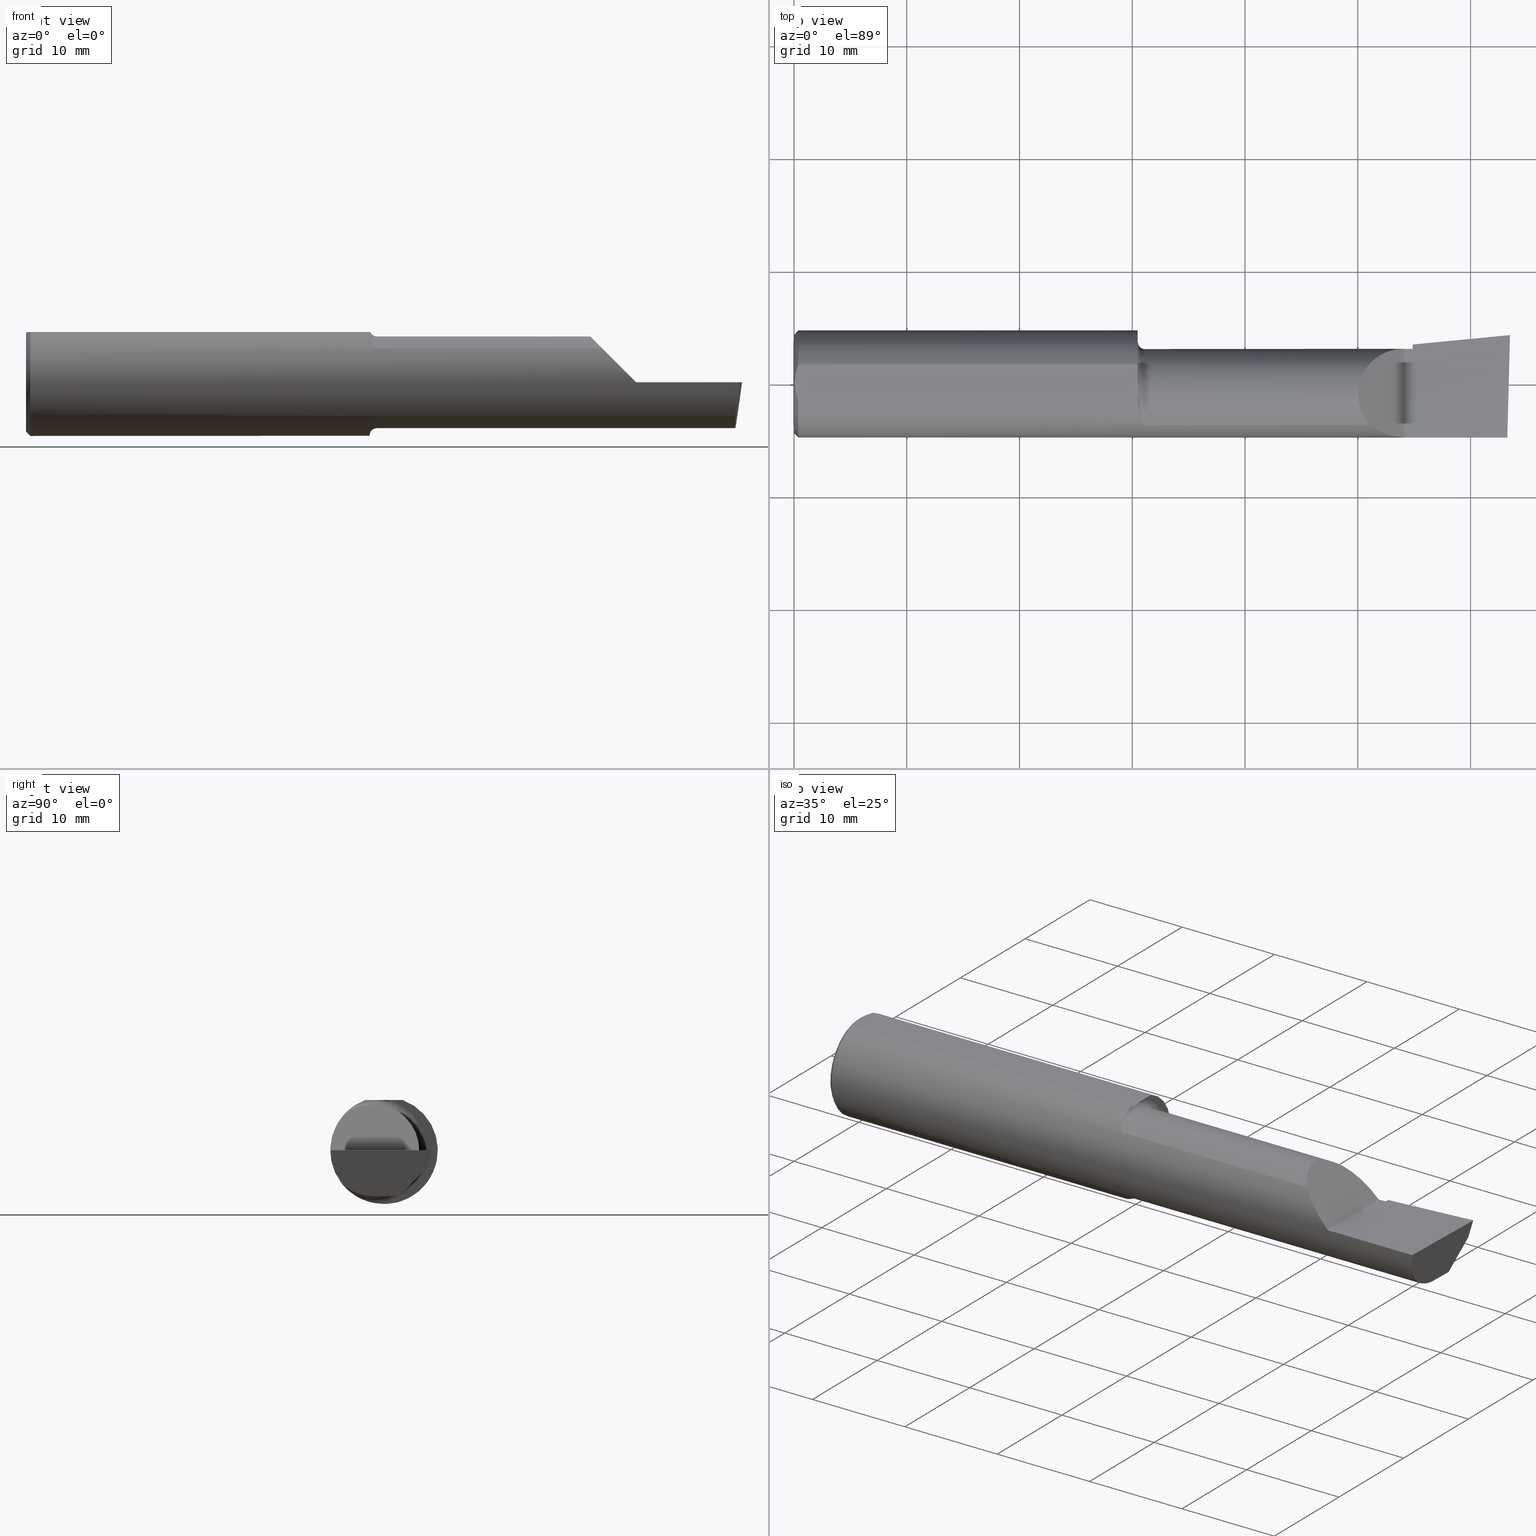
[diagram: canonical four-view strip — front | top / right | iso, engineering-drawing reading convention]
A machine part, canonical four-view strip (front | top / right | iso — engineering-drawing reading convention). The complete STEP part file that produces these views, byte-faithful:
ISO-10303-21;
HEADER;
FILE_DESCRIPTION (( 'STEP AP203' ),
    '1' );
FILE_NAME ('217525-B3601250.STEP',
    '2024-04-26T22:27:22',
    ( '' ),
    ( '' ),
    'SwSTEP 2.0',
    'SolidWorks 2022',
    '' );
FILE_SCHEMA (( 'CONFIG_CONTROL_DESIGN' ));
ENDSEC;

DATA;
#1 = ORIENTED_EDGE ( 'NONE', *, *, #60, .T. ) ;
#2 = CARTESIAN_POINT ( 'NONE',  ( 1.213610562096348877, -0.1338335382286872099, 0.1311728947444863180 ) ) ;
#3 = CARTESIAN_POINT ( 'NONE',  ( 1.217060058352116059, -0.1401415676386940368, -0.1243666343873851138 ) ) ;
#4 = CARTESIAN_POINT ( 'NONE',  ( 2.491169618080469217, 0.05430702260361125466, -0.1600499999999999701 ) ) ;
#5 = CIRCLE ( 'NONE', #86, 0.1873499999999999888 ) ;
#6 = EDGE_CURVE ( 'NONE', #57, #480, #492, .T. ) ;
#7 = CARTESIAN_POINT ( 'NONE',  ( 2.160000000000000142, -0.03740000000000000269, 0.000000000000000000 ) ) ;
#8 = CARTESIAN_POINT ( 'NONE',  ( 1.692500000000000115, -0.1454917112299468074, 0.1180346748349050540 ) ) ;
#9 = VERTEX_POINT ( 'NONE', #108 ) ;
#10 = APPROVAL_DATE_TIME ( #635, #366 ) ;
#11 = CARTESIAN_POINT ( 'NONE',  ( 1.203931069367344397, -0.09745462642916713492, 0.1609342754328615399 ) ) ;
#12 = VERTEX_POINT ( 'NONE', #396 ) ;
#13 = ADVANCED_FACE ( 'NONE', ( #55 ), #293, .F. ) ;
#14 = DIRECTION ( 'NONE',  ( -1.000000000000000000, 6.829619984160658046E-18, -0.000000000000000000 ) ) ;
#15 = FACE_OUTER_BOUND ( 'NONE', #619, .T. ) ;
#16 = CIRCLE ( 'NONE', #341, 0.1850499999999998535 ) ;
#17 = FACE_OUTER_BOUND ( 'NONE', #408, .T. ) ;
#18 = EDGE_CURVE ( 'NONE', #114, #513, #243, .T. ) ;
#19 = DIRECTION ( 'NONE',  ( -2.005228508682078977E-18, -0.2936076258024064023, -0.9559260233253795702 ) ) ;
#20 = CARTESIAN_POINT ( 'NONE',  ( 2.160000000000000142, 0.1379117236128366564, 0.000000000000000000 ) ) ;
#21 = DIRECTION ( 'NONE',  ( 0.000000000000000000, 0.000000000000000000, 1.000000000000000000 ) ) ;
#22 = ORIENTED_EDGE ( 'NONE', *, *, #129, .T. ) ;
#23 = CARTESIAN_POINT ( 'NONE',  ( 1.201790586316525022, -0.05136925160306193144, 0.1753499999999999781 ) ) ;
#24 = ADVANCED_FACE ( 'NONE', ( #454 ), #245, .F. ) ;
#25 = ORIENTED_EDGE ( 'NONE', *, *, #137, .F. ) ;
#26 = LOCAL_TIME ( 15, 27, 22.00000000000000000, #482 ) ;
#27 = ADVANCED_FACE ( 'NONE', ( #151 ), #59, .T. ) ;
#28 = CARTESIAN_POINT ( 'NONE',  ( 1.199999999999999956, 0.06597272163553663527, 0.1753499999999999781 ) ) ;
#29 = ORIENTED_EDGE ( 'NONE', *, *, #90, .F. ) ;
#30 = COORDINATED_UNIVERSAL_TIME_OFFSET ( 8, 0, .BEHIND. ) ;
#31 = CARTESIAN_POINT ( 'NONE',  ( 2.160000000000000142, 0.1010446066476776983, -0.07900565447499380278 ) ) ;
#32 = ORIENTED_EDGE ( 'NONE', *, *, #385, .F. ) ;
#33 = FACE_OUTER_BOUND ( 'NONE', #85, .T. ) ;
#34 = VERTEX_POINT ( 'NONE', #490 ) ;
#35 = AXIS2_PLACEMENT_3D ( 'NONE', #56, #592, #48 ) ;
#36 = AXIS2_PLACEMENT_3D ( 'NONE', #355, #407, #21 ) ;
#37 = APPROVAL_STATUS ( 'not_yet_approved' ) ;
#38 = CARTESIAN_POINT ( 'NONE',  ( 1.093080678464946361E-18, 0.1226499999999998841, 3.267291166268304703E-16 ) ) ;
#39 = ORIENTED_EDGE ( 'NONE', *, *, #190, .T. ) ;
#40 = B_SPLINE_CURVE_WITH_KNOTS ( 'NONE', 3,
 ( #117, #263, #171, #561, #111, #557, #369, #23, #311, #314 ),
 .UNSPECIFIED., .F., .F.,
 ( 4, 2, 2, 2, 4 ),
 ( 0.01227444304810798928, 0.01283060897602172207, 0.01338677490393545486, 0.01394294083184918764, 0.01449910675976292043 ),
 .UNSPECIFIED. ) ;
#41 = LENGTH_MEASURE_WITH_UNIT ( LENGTH_MEASURE( 0.02539999999999999897 ), #430 );
#42 = LINE ( 'NONE', #279, #113 ) ;
#43 = ORIENTED_EDGE ( 'NONE', *, *, #625, .T. ) ;
#44 = ORIENTED_EDGE ( 'NONE', *, *, #338, .T. ) ;
#45 = AXIS2_PLACEMENT_3D ( 'NONE', #252, #14, #554 ) ;
#46 = CARTESIAN_POINT ( 'NONE',  ( 2.500000000000000000, -0.2500000000000000555, 6.829619984160658046E-17 ) ) ;
#47 = ORIENTED_EDGE ( 'NONE', *, *, #546, .T. ) ;
#48 = DIRECTION ( 'NONE',  ( -0.7071067811865511255, 0.000000000000000000, 0.7071067811865437980 ) ) ;
#49 = CARTESIAN_POINT ( 'NONE',  ( 1.207485333659844118, -0.1155414972264653672, -0.1479248906558521259 ) ) ;
#50 = LINE ( 'NONE', #301, #104 ) ;
#51 = CARTESIAN_POINT ( 'NONE',  ( 2.160000000000000142, 0.1379117236128366564, 0.000000000000000000 ) ) ;
#52 = DIRECTION ( 'NONE',  ( -0.09165774897393340337, 0.9519021185660613282, -0.2923717047227306631 ) ) ;
#53 = CIRCLE ( 'NONE', #423, 0.1600499999999999701 ) ;
#54 = VECTOR ( 'NONE', #203, 39.37007874015748143 ) ;
#55 = FACE_OUTER_BOUND ( 'NONE', #290, .T. ) ;
#56 = CARTESIAN_POINT ( 'NONE',  ( 2.129999999999999893, -0.2500000000000000555, 1.065442715258197396E-16 ) ) ;
#57 = VERTEX_POINT ( 'NONE', #347 ) ;
#58 = CARTESIAN_POINT ( 'NONE',  ( 2.492483720199198949, 0.1538199878950242405, -0.05760614975163728946 ) ) ;
#59 = CYLINDRICAL_SURFACE ( 'NONE', #507, 0.1600499999999999146 ) ;
#60 = EDGE_CURVE ( 'NONE', #570, #328, #389, .T. ) ;
#61 = PLANE ( 'NONE',  #560 ) ;
#62 = LINE ( 'NONE', #172, #496 ) ;
#63 = VECTOR ( 'NONE', #346, 39.37007874015748854 ) ;
#64 = EDGE_LOOP ( 'NONE', ( #364, #259, #80, #388 ) ) ;
#65 = PLANE ( 'NONE',  #280 ) ;
#66 = CARTESIAN_POINT ( 'NONE',  ( 0.01499999999999997863, -0.06597272163553657975, 0.1753499999999999781 ) ) ;
#67 = B_SPLINE_CURVE_WITH_KNOTS ( 'NONE', 3,
 ( #260, #459, #211, #611, #164, #511 ),
 .UNSPECIFIED., .F., .F.,
 ( 4, 2, 4 ),
 ( 0.003480013901590607410, 0.004330767971208083697, 0.005181522040825559984 ),
 .UNSPECIFIED. ) ;
#68 = VERTEX_POINT ( 'NONE', #501 ) ;
#69 = ADVANCED_FACE ( 'NONE', ( #15 ), #206, .T. ) ;
#70 = CARTESIAN_POINT ( 'NONE',  ( 0.01499999999999999424, 0.000000000000000000, 0.000000000000000000 ) ) ;
#71 = LINE ( 'NONE', #418, #594 ) ;
#72 = EDGE_CURVE ( 'NONE', #287, #368, #333, .T. ) ;
#73 = ORIENTED_EDGE ( 'NONE', *, *, #118, .F. ) ;
#74 = CARTESIAN_POINT ( 'NONE',  ( 2.129999999999999893, 0.1226499999999998147, 1.065442715258197396E-16 ) ) ;
#75 = DIRECTION ( 'NONE',  ( 0.000000000000000000, 1.000000000000000000, 0.000000000000000000 ) ) ;
#76 = VERTEX_POINT ( 'NONE', #545 ) ;
#77 = TOROIDAL_SURFACE ( 'NONE', #45, 0.1850499999999998535, 0.02500000000000000486 ) ;
#78 = CARTESIAN_POINT ( 'NONE',  ( 0.000000000000000000, 0.000000000000000000, 0.000000000000000000 ) ) ;
#79 = FACE_OUTER_BOUND ( 'NONE', #487, .T. ) ;
#80 = ORIENTED_EDGE ( 'NONE', *, *, #6, .T. ) ;
#81 = EDGE_CURVE ( 'NONE', #337, #12, #102, .T. ) ;
#82 = PERSON_AND_ORGANIZATION ( #585, #149 ) ;
#83 = FACE_OUTER_BOUND ( 'NONE', #376, .T. ) ;
#84 = ORIENTED_EDGE ( 'NONE', *, *, #118, .T. ) ;
#85 = EDGE_LOOP ( 'NONE', ( #563, #39, #25 ) ) ;
#86 = AXIS2_PLACEMENT_3D ( 'NONE', #109, #357, #306 ) ;
#87 = COORDINATED_UNIVERSAL_TIME_OFFSET ( 8, 0, .BEHIND. ) ;
#88 = ORIENTED_EDGE ( 'NONE', *, *, #254, .T. ) ;
#89 = APPROVAL_STATUS ( 'not_yet_approved' ) ;
#90 = EDGE_CURVE ( 'NONE', #335, #584, #71, .T. ) ;
#91 = CARTESIAN_POINT ( 'NONE',  ( 2.086590019116435268, -0.1873500000000000165, 0.04340998088356443074 ) ) ;
#92 = ORIENTED_EDGE ( 'NONE', *, *, #123, .T. ) ;
#93 = EDGE_CURVE ( 'NONE', #9, #57, #370, .T. ) ;
#94 = VERTEX_POINT ( 'NONE', #261 ) ;
#95 = APPROVAL_PERSON_ORGANIZATION ( #532, #617, #436 ) ;
#96 = FACE_OUTER_BOUND ( 'NONE', #121, .T. ) ;
#97 = ORIENTED_EDGE ( 'NONE', *, *, #326, .T. ) ;
#98 = EDGE_CURVE ( 'NONE', #76, #68, #138, .T. ) ;
#99 = DIRECTION ( 'NONE',  ( 0.7071067811865390240, 8.659560562355036396E-17, 0.7071067811865560104 ) ) ;
#100 = CARTESIAN_POINT ( 'NONE',  ( 1.222144995725004124, -0.1448851833857938698, -0.1187833539262090621 ) ) ;
#101 = DIRECTION ( 'NONE',  ( 0.000000000000000000, -1.000000000000000000, 0.000000000000000000 ) ) ;
#102 = LINE ( 'NONE', #298, #530 ) ;
#103 = CARTESIAN_POINT ( 'NONE',  ( 1.201116380138691264, -0.06597272163553657975, 0.1753499999999999781 ) ) ;
#104 = VECTOR ( 'NONE', #244, 39.37007874015748143 ) ;
#105 = VECTOR ( 'NONE', #612, 39.37007874015748143 ) ;
#106 = CARTESIAN_POINT ( 'NONE',  ( 1.212916881138097258, -0.1325294370633285645, -0.1325423110575142671 ) ) ;
#107 = CARTESIAN_POINT ( 'NONE',  ( 1.225000000000000089, -0.1454917112299475568, 0.1180346748349042352 ) ) ;
#108 = CARTESIAN_POINT ( 'NONE',  ( 2.477259974483429161, 0.05296767626088545039, -0.1600499999999999701 ) ) ;
#109 = CARTESIAN_POINT ( 'NONE',  ( 0.01499999999999999424, 0.000000000000000000, 0.000000000000000000 ) ) ;
#110 = DIRECTION ( 'NONE',  ( 0.1240019227989976880, 0.3022330132596679486, 0.9451342385281217284 ) ) ;
#111 = CARTESIAN_POINT ( 'NONE',  ( 1.201446793517543243, -0.01487494471388409178, 0.1753500000000000059 ) ) ;
#112 = CARTESIAN_POINT ( 'NONE',  ( 2.160000000000000142, 0.02241901528670510110, -0.1600499999999999701 ) ) ;
#113 = VECTOR ( 'NONE', #330, 39.37007874015748143 ) ;
#114 = VERTEX_POINT ( 'NONE', #607 ) ;
#115 = APPLICATION_CONTEXT ( 'configuration controlled 3d designs of mechanical parts and assemblies' ) ;
#116 = EDGE_CURVE ( 'NONE', #319, #34, #181, .T. ) ;
#117 = CARTESIAN_POINT ( 'NONE',  ( 1.199999999999999956, 0.02172596722253220328, 0.1753499999999999781 ) ) ;
#118 = EDGE_CURVE ( 'NONE', #337, #179, #62, .T. ) ;
#119 = CARTESIAN_POINT ( 'NONE',  ( 2.474646882977779683, -0.1156304438478839708, -0.1453804992321580114 ) ) ;
#120 = LINE ( 'NONE', #509, #105 ) ;
#121 = EDGE_LOOP ( 'NONE', ( #135, #383, #73, #325 ) ) ;
#122 = CARTESIAN_POINT ( 'NONE',  ( 2.160000000000000142, 0.1010446066476776983, -0.07900565447499380278 ) ) ;
#123 = EDGE_CURVE ( 'NONE', #227, #186, #207, .T. ) ;
#124 = CARTESIAN_POINT ( 'NONE',  ( 2.477223734188807924, -0.1454917112299468074, -0.1180346748349050540 ) ) ;
#125 = ORIENTED_EDGE ( 'NONE', *, *, #356, .F. ) ;
#126 = CC_DESIGN_APPROVAL ( #617, ( #297 ) ) ;
#127 = CARTESIAN_POINT ( 'NONE',  ( 0.01499999999999997863, -0.06597272163553657975, 0.1753499999999999781 ) ) ;
#128 = ORIENTED_EDGE ( 'NONE', *, *, #162, .T. ) ;
#129 = EDGE_CURVE ( 'NONE', #328, #584, #217, .T. ) ;
#130 = PERSON_AND_ORGANIZATION_ROLE ( 'design_supplier' ) ;
#131 = CARTESIAN_POINT ( 'NONE',  ( 0.000000000000000000, 0.000000000000000000, 0.000000000000000000 ) ) ;
#132 = ORIENTED_EDGE ( 'NONE', *, *, #93, .F. ) ;
#133 = CALENDAR_DATE ( 2024, 26, 4 ) ;
#134 = DIRECTION ( 'NONE',  ( 0.000000000000000000, 0.000000000000000000, -1.000000000000000000 ) ) ;
#135 = ORIENTED_EDGE ( 'NONE', *, *, #183, .F. ) ;
#136 = VECTOR ( 'NONE', #242, 39.37007874015748854 ) ;
#137 = EDGE_CURVE ( 'NONE', #480, #176, #120, .T. ) ;
#138 = CIRCLE ( 'NONE', #36, 0.1723499999999996424 ) ;
#139 = PERSON_AND_ORGANIZATION_ROLE ( 'creator' ) ;
#140 = B_SPLINE_CURVE_WITH_KNOTS ( 'NONE', 3,
 ( #103, #552, #11, #156, #395, #2, #497, #596, #352, #202, #400, #602, #152, #107 ),
 .UNSPECIFIED., .F., .F.,
 ( 4, 2, 2, 2, 2, 2, 4 ),
 ( 5.633523616107936189E-07, 0.001319819381107009085, 0.001979447395479707206, 0.002309261402666058002, 0.002474168406259232532, 0.002556621908055823483, 0.002639075409852414001 ),
 .UNSPECIFIED. ) ;
#141 = EDGE_CURVE ( 'NONE', #227, #57, #299, .T. ) ;
#142 = ORIENTED_EDGE ( 'NONE', *, *, #98, .T. ) ;
#143 = CARTESIAN_POINT ( 'NONE',  ( 2.160000000000000142, 0.04400172171466215643, -0.1378033461200730836 ) ) ;
#144 = ORIENTED_EDGE ( 'NONE', *, *, #345, .T. ) ;
#145 = CARTESIAN_POINT ( 'NONE',  ( 1.225000000000000089, -0.03739999999999999575, 0.000000000000000000 ) ) ;
#146 = EDGE_CURVE ( 'NONE', #416, #513, #434, .T. ) ;
#147 = ORIENTED_EDGE ( 'NONE', *, *, #141, .F. ) ;
#148 = AXIS2_PLACEMENT_3D ( 'NONE', #234, #428, #628 ) ;
#149 = ORGANIZATION ( 'UNSPECIFIED', 'UNSPECIFIED', '' ) ;
#150 = LINE ( 'NONE', #8, #157 ) ;
#151 = FACE_OUTER_BOUND ( 'NONE', #429, .T. ) ;
#152 = CARTESIAN_POINT ( 'NONE',  ( 1.223888626799697121, -0.1454917112299470849, 0.1180346748349045544 ) ) ;
#153 = DIRECTION ( 'NONE',  ( 0.000000000000000000, -1.000000000000000000, 0.000000000000000000 ) ) ;
#154 = FACE_OUTER_BOUND ( 'NONE', #359, .T. ) ;
#155 = DIRECTION ( 'NONE',  ( -6.829619984160658046E-18, -1.000000000000000000, 0.000000000000000000 ) ) ;
#156 = CARTESIAN_POINT ( 'NONE',  ( 1.208327409769773597, -0.1182546610979338386, 0.1455684145307627186 ) ) ;
#157 = VECTOR ( 'NONE', #542, 39.37007874015748143 ) ;
#158 = CARTESIAN_POINT ( 'NONE',  ( 1.223475335450381341, -0.1454917112299472792, -0.1180346748349044850 ) ) ;
#159 = CARTESIAN_POINT ( 'NONE',  ( 2.500000000000000000, -0.03739999999999999575, -0.1600499999999999701 ) ) ;
#160 = CARTESIAN_POINT ( 'NONE',  ( 1.199999999999999956, 0.1476499999999998647, 0.000000000000000000 ) ) ;
#161 = CARTESIAN_POINT ( 'NONE',  ( 2.129999999999999893, 0.1226499999999998147, 1.065442715258197396E-16 ) ) ;
#162 = EDGE_CURVE ( 'NONE', #186, #114, #358, .T. ) ;
#163 = ORIENTED_EDGE ( 'NONE', *, *, #441, .T. ) ;
#164 = CARTESIAN_POINT ( 'NONE',  ( 0.01125230581755086272, 0.05532998191409922023, 0.1753500000000000059 ) ) ;
#165 = DIRECTION ( 'NONE',  ( 1.000000000000000000, 0.000000000000000000, 0.000000000000000000 ) ) ;
#166 = CIRCLE ( 'NONE', #528, 0.1600499999999999701 ) ;
#167 = AXIS2_PLACEMENT_3D ( 'NONE', #367, #519, #75 ) ;
#168 = FACE_OUTER_BOUND ( 'NONE', #380, .T. ) ;
#169 = LINE ( 'NONE', #565, #283 ) ;
#170 = ORIENTED_EDGE ( 'NONE', *, *, #248, .T. ) ;
#171 = CARTESIAN_POINT ( 'NONE',  ( 1.200322286002908134, 0.007053356780979112318, 0.1753499999999999781 ) ) ;
#172 = CARTESIAN_POINT ( 'NONE',  ( 2.160000000000000142, 0.1346188438362106166, -0.01072093908174519966 ) ) ;
#173 = EDGE_LOOP ( 'NONE', ( #386, #84, #163, #281 ) ) ;
#174 = CALENDAR_DATE ( 2024, 26, 4 ) ;
#175 = DIRECTION ( 'NONE',  ( 1.000000000000000000, -6.829619984160658046E-18, 0.000000000000000000 ) ) ;
#176 = VERTEX_POINT ( 'NONE', #112 ) ;
#177 = AXIS2_PLACEMENT_3D ( 'NONE', #296, #52, #247 ) ;
#178 = APPROVAL_ROLE ( '' ) ;
#179 = VERTEX_POINT ( 'NONE', #469 ) ;
#180 = DATE_AND_TIME ( #133, #517 ) ;
#181 = B_SPLINE_CURVE_WITH_KNOTS ( 'NONE', 3,
 ( #66, #457, #257, #609, #212, #618 ),
 .UNSPECIFIED., .F., .F.,
 ( 4, 2, 4 ),
 ( 0.001779942938356815062, 0.002629978419973711019, 0.003480013901590607410 ),
 .UNSPECIFIED. ) ;
#182 = ORIENTED_EDGE ( 'NONE', *, *, #577, .F. ) ;
#183 = EDGE_CURVE ( 'NONE', #378, #12, #215, .T. ) ;
#184 = CC_DESIGN_PERSON_AND_ORGANIZATION_ASSIGNMENT ( #580, #139, ( #297 ) ) ;
#185 = LINE ( 'NONE', #191, #505 ) ;
#186 = VERTEX_POINT ( 'NONE', #321 ) ;
#187 = VECTOR ( 'NONE', #175, 39.37007874015748143 ) ;
#188 = DIRECTION ( 'NONE',  ( 1.000000000000000000, 0.000000000000000000, 0.000000000000000000 ) ) ;
#189 = ORIENTED_EDGE ( 'NONE', *, *, #98, .F. ) ;
#190 = EDGE_CURVE ( 'NONE', #287, #176, #614, .T. ) ;
#191 = CARTESIAN_POINT ( 'NONE',  ( 0.01499999999999999424, 2.294375778202566330E-17, 0.1873499999999999888 ) ) ;
#192 = ORIENTED_EDGE ( 'NONE', *, *, #208, .F. ) ;
#193 = LINE ( 'NONE', #589, #63 ) ;
#194 = CARTESIAN_POINT ( 'NONE',  ( 1.215943198097122258, -0.1383011673991934587, -0.1264147259943146917 ) ) ;
#195 = VECTOR ( 'NONE', #196, 39.37007874015748854 ) ;
#196 = DIRECTION ( 'NONE',  ( -0.9953961983671800740, -0.09584575252021031166, 0.000000000000000000 ) ) ;
#197 = DIRECTION ( 'NONE',  ( 1.000000000000000000, -6.829619984160658046E-18, 0.000000000000000000 ) ) ;
#198 = DIRECTION ( 'NONE',  ( 0.000000000000000000, 0.000000000000000000, 1.000000000000000000 ) ) ;
#199 = DIRECTION ( 'NONE',  ( -1.000000000000000000, 5.691349986800549142E-18, -0.000000000000000000 ) ) ;
#200 = ADVANCED_FACE ( 'NONE', ( #79 ), #447, .T. ) ;
#201 = EDGE_CURVE ( 'NONE', #227, #570, #169, .T. ) ;
#202 = CARTESIAN_POINT ( 'NONE',  ( 1.220462485058698476, -0.1437494271365429566, 0.1201537477313801699 ) ) ;
#203 = DIRECTION ( 'NONE',  ( -0.000000000000000000, 1.000000000000000000, -0.000000000000000000 ) ) ;
#204 = LINE ( 'NONE', #58, #446 ) ;
#205 = CC_DESIGN_APPROVAL ( #366, ( #437 ) ) ;
#206 = CYLINDRICAL_SURFACE ( 'NONE', #246, 0.1873499999999999888 ) ;
#207 =( BOUNDED_CURVE ( )  B_SPLINE_CURVE ( 3, ( #363, #558, #318, #315 ),
 .UNSPECIFIED., .F., .T. ) 
 B_SPLINE_CURVE_WITH_KNOTS ( ( 4, 4 ),
 ( 0.6791649766273006872, 1.360746882514497491 ),
 .UNSPECIFIED. ) 
 CURVE ( )  GEOMETRIC_REPRESENTATION_ITEM ( )  RATIONAL_B_SPLINE_CURVE ( ( 1.000000000000000000, 0.9616603987079550553, 0.9616603987079550553, 1.000000000000000000 ) ) 
 REPRESENTATION_ITEM ( '' )  );
#208 = EDGE_CURVE ( 'NONE', #68, #76, #412, .T. ) ;
#209 = DIRECTION ( 'NONE',  ( -4.755568962650852027E-18, -0.6963153109074922131, -0.7177360153954949196 ) ) ;
#210 = CARTESIAN_POINT ( 'NONE',  ( 1.902393788885675230, -0.02584108761840225171, 0.2276062111143221378 ) ) ;
#211 = CARTESIAN_POINT ( 'NONE',  ( 0.004115035183746292881, 0.02255629470626744487, 0.1753499999999999781 ) ) ;
#212 = CARTESIAN_POINT ( 'NONE',  ( 0.003000000000000172667, -0.01126410975715121283, 0.1753500000000000059 ) ) ;
#213 = ORIENTED_EDGE ( 'NONE', *, *, #452, .T. ) ;
#214 = CARTESIAN_POINT ( 'NONE',  ( 2.160000000000000142, -0.03740000000000000269, 0.000000000000000000 ) ) ;
#215 = LINE ( 'NONE', #415, #476 ) ;
#216 =( GEOMETRIC_REPRESENTATION_CONTEXT ( 3 ) GLOBAL_UNCERTAINTY_ASSIGNED_CONTEXT ( ( #484 ) ) GLOBAL_UNIT_ASSIGNED_CONTEXT ( ( #518, #275, #478 ) ) REPRESENTATION_CONTEXT ( 'NONE', 'WORKASPACE' ) );
#217 = CIRCLE ( 'NONE', #167, 0.1873499999999999888 ) ;
#218 = DIRECTION ( 'NONE',  ( 1.000000000000000000, 0.000000000000000000, 0.000000000000000000 ) ) ;
#219 = DIRECTION ( 'NONE',  ( 0.000000000000000000, 0.000000000000000000, -1.000000000000000000 ) ) ;
#220 = EDGE_LOOP ( 'NONE', ( #308, #241, #566 ) ) ;
#221 = DIRECTION ( 'NONE',  ( 1.000000000000000000, 0.000000000000000000, 0.000000000000000000 ) ) ;
#222 = CC_DESIGN_DATE_AND_TIME_ASSIGNMENT ( #233, #372, ( #297 ) ) ;
#223 = DIRECTION ( 'NONE',  ( 0.000000000000000000, 1.000000000000000000, -1.438723400918613551E-16 ) ) ;
#224 = ORIENTED_EDGE ( 'NONE', *, *, #391, .F. ) ;
#225 = PERSON_AND_ORGANIZATION ( #585, #149 ) ;
#226 = LINE ( 'NONE', #38, #187 ) ;
#227 = VERTEX_POINT ( 'NONE', #236 ) ;
#228 = CALENDAR_DATE ( 2024, 26, 4 ) ;
#229 = ADVANCED_FACE ( 'NONE', ( #289 ), #334, .F. ) ;
#230 = LINE ( 'NONE', #374, #424 ) ;
#231 = ORIENTED_EDGE ( 'NONE', *, *, #309, .F. ) ;
#232 = EDGE_CURVE ( 'NONE', #534, #328, #16, .T. ) ;
#233 = DATE_AND_TIME ( #174, #26 ) ;
#234 = CARTESIAN_POINT ( 'NONE',  ( 2.160000000000000142, 0.1379117236128366564, 0.000000000000000000 ) ) ;
#235 = ORIENTED_EDGE ( 'NONE', *, *, #433, .T. ) ;
#236 = CARTESIAN_POINT ( 'NONE',  ( 2.477223734188807924, -0.1454917112299468074, -0.1180346748349050540 ) ) ;
#237 = ORIENTED_EDGE ( 'NONE', *, *, #598, .F. ) ;
#238 = APPROVAL_PERSON_ORGANIZATION ( #578, #366, #527 ) ;
#239 = DESIGN_CONTEXT ( 'detailed design', #258, 'design' ) ;
#240 = FACE_OUTER_BOUND ( 'NONE', #220, .T. ) ;
#241 = ORIENTED_EDGE ( 'NONE', *, *, #248, .F. ) ;
#242 = DIRECTION ( 'NONE',  ( 0.02617694830791474428, 0.9996573249755561497, -2.665804247648019634E-18 ) ) ;
#243 = LINE ( 'NONE', #543, #54 ) ;
#244 = DIRECTION ( 'NONE',  ( 6.829619984160658816E-18, 1.000000000000000000, -7.059994452165177242E-34 ) ) ;
#245 = PLANE ( 'NONE',  #351 ) ;
#246 = AXIS2_PLACEMENT_3D ( 'NONE', #590, #595, #295 ) ;
#247 = DIRECTION ( 'NONE',  ( 0.000000000000000000, 0.2936076258024064023, 0.9559260233253795702 ) ) ;
#248 = EDGE_CURVE ( 'NONE', #114, #416, #276, .T. ) ;
#249 = CARTESIAN_POINT ( 'NONE',  ( 2.472657716785286119, -0.1026153499216721221, -0.1643501480114536173 ) ) ;
#250 = DIRECTION ( 'NONE',  ( -0.06894566448119622548, 0.7160281025913036723, -0.6946583704589932573 ) ) ;
#251 = DIRECTION ( 'NONE',  ( -1.000000000000000000, 6.829619984160658046E-18, -0.000000000000000000 ) ) ;
#252 = CARTESIAN_POINT ( 'NONE',  ( 1.225000000000000089, -0.03739999999999997493, 0.000000000000000000 ) ) ;
#253 = CARTESIAN_POINT ( 'NONE',  ( 1.200336700870086037, -0.05340758954924543223, -0.1799583179751510220 ) ) ;
#254 = EDGE_CURVE ( 'NONE', #68, #574, #42, .T. ) ;
#255 = CARTESIAN_POINT ( 'NONE',  ( 2.160000000000000142, 0.1226499999999999674, 3.267291166268307168E-16 ) ) ;
#256 = CC_DESIGN_SECURITY_CLASSIFICATION ( #437, ( #623 ) ) ;
#257 = CARTESIAN_POINT ( 'NONE',  ( 0.008227791779583789808, -0.04447712204611815878, 0.1753499999999999781 ) ) ;
#258 = APPLICATION_CONTEXT ( 'configuration controlled 3d designs of mechanical parts and assemblies' ) ;
#259 = ORIENTED_EDGE ( 'NONE', *, *, #93, .T. ) ;
#260 = CARTESIAN_POINT ( 'NONE',  ( 0.003000000000000218638, 2.334609556160449697E-17, 0.1753499999999999781 ) ) ;
#261 = CARTESIAN_POINT ( 'NONE',  ( 1.225000000000000089, -0.1454917112299475568, 0.1180346748349042352 ) ) ;
#262 = ORIENTED_EDGE ( 'NONE', *, *, #556, .T. ) ;
#263 = CARTESIAN_POINT ( 'NONE',  ( 1.199999999999999734, 0.01439074984011793311, 0.1753499999999999781 ) ) ;
#264 = CARTESIAN_POINT ( 'NONE',  ( 2.011965325165093077, -0.1454917112299461968, 0.1180346748349056646 ) ) ;
#265 = ORIENTED_EDGE ( 'NONE', *, *, #546, .F. ) ;
#266 = DIRECTION ( 'NONE',  ( 1.000000000000000000, 0.000000000000000000, 0.000000000000000000 ) ) ;
#267 = DIRECTION ( 'NONE',  ( -1.000000000000000000, -0.000000000000000000, -0.000000000000000000 ) ) ;
#268 = CIRCLE ( 'NONE', #495, 0.1600499999999998313 ) ;
#269 = VECTOR ( 'NONE', #199, 39.37007874015748143 ) ;
#270 = ORIENTED_EDGE ( 'NONE', *, *, #162, .F. ) ;
#271 = DIRECTION ( 'NONE',  ( 0.000000000000000000, 0.000000000000000000, 1.000000000000000000 ) ) ;
#272 = CARTESIAN_POINT ( 'NONE',  ( 2.474910817315467693, -0.03674301662998678830, -0.1600499999999999701 ) ) ;
#273 = DIMENSIONAL_EXPONENTS ( 1.000000000000000000, 0.000000000000000000, 0.000000000000000000, 0.000000000000000000, 0.000000000000000000, 0.000000000000000000, 0.000000000000000000 ) ;
#274 = ORIENTED_EDGE ( 'NONE', *, *, #577, .T. ) ;
#275 =( NAMED_UNIT ( * ) PLANE_ANGLE_UNIT ( ) SI_UNIT ( $, .RADIAN. ) );
#276 =( BOUNDED_CURVE ( )  B_SPLINE_CURVE ( 3, ( #336, #91, #533, #277 ),
 .UNSPECIFIED., .F., .F. ) 
 B_SPLINE_CURVE_WITH_KNOTS ( ( 4, 4 ),
 ( 4.712388980384689674, 5.393970886271890031 ),
 .UNSPECIFIED. ) 
 CURVE ( )  GEOMETRIC_REPRESENTATION_ITEM ( )  RATIONAL_B_SPLINE_CURVE ( ( 1.000000000000000000, 0.9616603987079546112, 0.9616603987079546112, 1.000000000000000000 ) ) 
 REPRESENTATION_ITEM ( '' )  );
#277 = CARTESIAN_POINT ( 'NONE',  ( 2.011965325165093077, -0.1454917112299461968, 0.1180346748349056646 ) ) ;
#278 = ORIENTED_EDGE ( 'NONE', *, *, #232, .F. ) ;
#279 = CARTESIAN_POINT ( 'NONE',  ( 0.01499999999999999424, 0.000000000000000000, -0.1873499999999999888 ) ) ;
#280 = AXIS2_PLACEMENT_3D ( 'NONE', #20, #456, #564 ) ;
#281 = ORIENTED_EDGE ( 'NONE', *, *, #326, .F. ) ;
#282 = PRODUCT ( '217525-B3601250', '217525-B3601250', '', ( #468 ) ) ;
#283 = VECTOR ( 'NONE', #307, 39.37007874015748143 ) ;
#284 = ORIENTED_EDGE ( 'NONE', *, *, #425, .T. ) ;
#285 = CALENDAR_DATE ( 2024, 26, 4 ) ;
#286 = DIRECTION ( 'NONE',  ( -1.000000000000000000, 6.829619984160658046E-18, -0.000000000000000000 ) ) ;
#287 = VERTEX_POINT ( 'NONE', #143 ) ;
#288 = CALENDAR_DATE ( 2024, 26, 4 ) ;
#289 = FACE_OUTER_BOUND ( 'NONE', #510, .T. ) ;
#290 = EDGE_LOOP ( 'NONE', ( #610, #47 ) ) ;
#291 = ADVANCED_FACE ( 'NONE', ( #83 ), #621, .F. ) ;
#292 = PLANE ( 'NONE',  #177 ) ;
#293 = PLANE ( 'NONE',  #583 ) ;
#294 = CARTESIAN_POINT ( 'NONE',  ( 2.511712141217646632, 0.1533490680423130470, -0.05999999999999999084 ) ) ;
#295 = DIRECTION ( 'NONE',  ( 0.000000000000000000, 0.000000000000000000, 1.000000000000000000 ) ) ;
#296 = CARTESIAN_POINT ( 'NONE',  ( 2.509953961983671267, 0.1716084575252020683, -6.829619984160658046E-17 ) ) ;
#297 = PRODUCT_DEFINITION ( 'UNKNOWN', '', #623, #239 ) ;
#298 = CARTESIAN_POINT ( 'NONE',  ( 0.3393181374772696324, -0.03739999999999998881, 2.916527262322783071E-16 ) ) ;
#299 =( BOUNDED_CURVE ( )  B_SPLINE_CURVE ( 3, ( #124, #119, #568, #562 ),
 .UNSPECIFIED., .F., .T. ) 
 B_SPLINE_CURVE_WITH_KNOTS ( ( 4, 4 ),
 ( 5.751779107031783411, 6.493234751459985965 ),
 .UNSPECIFIED. ) 
 CURVE ( )  GEOMETRIC_REPRESENTATION_ITEM ( )  RATIONAL_B_SPLINE_CURVE ( ( 1.000000000000000000, 0.9547092712975350226, 0.9547092712975350226, 1.000000000000000000 ) ) 
 REPRESENTATION_ITEM ( '' )  );
#300 = CONICAL_SURFACE ( 'NONE', #393, 0.1873499999999999888, 0.7853981633974602694 ) ;
#301 = CARTESIAN_POINT ( 'NONE',  ( 2.160000000000000142, -0.2500000000000000555, 1.034430765243970311E-16 ) ) ;
#302 = CARTESIAN_POINT ( 'NONE',  ( 1.201697995486591175, -0.07541755249016977858, -0.1718998534213997675 ) ) ;
#303 = PLANE ( 'NONE',  #633 ) ;
#304 = CARTESIAN_POINT ( 'NONE',  ( 1.199999999999999956, -0.03015080213903810827, -0.1849079544810676157 ) ) ;
#305 = EDGE_CURVE ( 'NONE', #513, #516, #226, .T. ) ;
#306 = DIRECTION ( 'NONE',  ( 0.000000000000000000, 0.000000000000000000, 1.000000000000000000 ) ) ;
#307 = DIRECTION ( 'NONE',  ( -1.000000000000000000, 6.829619984160658046E-18, -0.000000000000000000 ) ) ;
#308 = ORIENTED_EDGE ( 'NONE', *, *, #146, .F. ) ;
#309 = EDGE_CURVE ( 'NONE', #378, #179, #230, .T. ) ;
#310 = CIRCLE ( 'NONE', #486, 0.1873499999999999888 ) ;
#311 = CARTESIAN_POINT ( 'NONE',  ( 1.201479449616799977, -0.05867400124853454357, 0.1753500000000000059 ) ) ;
#312 = VECTOR ( 'NONE', #410, 39.37007874015748854 ) ;
#313 = DIRECTION ( 'NONE',  ( 1.000000000000000000, 0.000000000000000000, 0.000000000000000000 ) ) ;
#314 = CARTESIAN_POINT ( 'NONE',  ( 1.201116380138691264, -0.06597272163553657975, 0.1753499999999999781 ) ) ;
#315 = CARTESIAN_POINT ( 'NONE',  ( 2.490625440078237940, -0.1873499999999999888, 6.926778495256700803E-17 ) ) ;
#316 = ORIENTED_EDGE ( 'NONE', *, *, #60, .F. ) ;
#317 = ADVANCED_FACE ( 'NONE', ( #33 ), #573, .T. ) ;
#318 = CARTESIAN_POINT ( 'NONE',  ( 2.485293537526806151, -0.1873500000000000443, -0.04340998088356413931 ) ) ;
#319 = VERTEX_POINT ( 'NONE', #127 ) ;
#320 = APPLICATION_PROTOCOL_DEFINITION ( 'international standard', 'config_control_design', 1994, #258 ) ;
#321 = CARTESIAN_POINT ( 'NONE',  ( 2.490625440078237940, -0.1873499999999999888, 6.926778495256700803E-17 ) ) ;
#322 = LOCAL_TIME ( 15, 27, 22.00000000000000000, #87 ) ;
#323 = DATE_AND_TIME ( #228, #550 ) ;
#324 = CARTESIAN_POINT ( 'NONE',  ( 2.160000000000000142, -0.03740000000000000269, 0.000000000000000000 ) ) ;
#325 = ORIENTED_EDGE ( 'NONE', *, *, #81, .T. ) ;
#326 = EDGE_CURVE ( 'NONE', #516, #368, #53, .T. ) ;
#327 = SECURITY_CLASSIFICATION_LEVEL ( 'unclassified' ) ;
#328 = VERTEX_POINT ( 'NONE', #522 ) ;
#329 = APPROVAL_STATUS ( 'not_yet_approved' ) ;
#330 = DIRECTION ( 'NONE',  ( 0.7071067811865390240, 0.000000000000000000, -0.7071067811865560104 ) ) ;
#331 = AXIS2_PLACEMENT_3D ( 'NONE', #294, #250, #491 ) ;
#332 = EDGE_LOOP ( 'NONE', ( #270, #144, #559, #32, #579, #426 ) ) ;
#333 = CIRCLE ( 'NONE', #414, 0.1600499999999999146 ) ;
#334 = PLANE ( 'NONE',  #474 ) ;
#335 = VERTEX_POINT ( 'NONE', #472 ) ;
#336 = CARTESIAN_POINT ( 'NONE',  ( 2.129999999999999893, -0.1873499999999999888, 1.065442715258197396E-16 ) ) ;
#337 = VERTEX_POINT ( 'NONE', #631 ) ;
#338 = EDGE_CURVE ( 'NONE', #76, #34, #185, .T. ) ;
#339 = LINE ( 'NONE', #4, #195 ) ;
#340 = DIRECTION ( 'NONE',  ( 0.1219104985253360862, 0.000000000000000000, 0.9925410975618610410 ) ) ;
#341 = AXIS2_PLACEMENT_3D ( 'NONE', #381, #529, #587 ) ;
#342 = PLANE ( 'NONE',  #35 ) ;
#343 = ORIENTED_EDGE ( 'NONE', *, *, #506, .F. ) ;
#344 = ADVANCED_FACE ( 'NONE', ( #240 ), #342, .F. ) ;
#345 = EDGE_CURVE ( 'NONE', #186, #12, #439, .T. ) ;
#346 = DIRECTION ( 'NONE',  ( -4.755568962650852027E-18, -0.6963153109074922131, -0.7177360153954949196 ) ) ;
#347 = CARTESIAN_POINT ( 'NONE',  ( 2.474893613600468445, -0.03739999999999999575, -0.1600499999999999701 ) ) ;
#348 = CARTESIAN_POINT ( 'NONE',  ( 0.01499999999999999424, 0.000000000000000000, 0.000000000000000000 ) ) ;
#349 = CARTESIAN_POINT ( 'NONE',  ( 1.220088327122037075, -0.1434986192849199149, -0.1204547541528176863 ) ) ;
#350 = VECTOR ( 'NONE', #413, 39.37007874015748143 ) ;
#351 = AXIS2_PLACEMENT_3D ( 'NONE', #249, #443, #340 ) ;
#352 = CARTESIAN_POINT ( 'NONE',  ( 1.218558384071252387, -0.1420205060553830778, 0.1222022583412207819 ) ) ;
#353 = CARTESIAN_POINT ( 'NONE',  ( 1.200000000000000178, -0.04186526254461788582, -0.1829978128711760021 ) ) ;
#354 = DIRECTION ( 'NONE',  ( -0.000000000000000000, 0.000000000000000000, 1.000000000000000000 ) ) ;
#355 = CARTESIAN_POINT ( 'NONE',  ( 0.000000000000000000, 0.000000000000000000, 0.000000000000000000 ) ) ;
#356 = EDGE_CURVE ( 'NONE', #94, #416, #150, .T. ) ;
#357 = DIRECTION ( 'NONE',  ( -1.000000000000000000, -0.000000000000000000, -0.000000000000000000 ) ) ;
#358 = LINE ( 'NONE', #512, #362 ) ;
#359 = EDGE_LOOP ( 'NONE', ( #237, #576, #432, #265, #536, #231 ) ) ;
#360 = AXIS2_PLACEMENT_3D ( 'NONE', #160, #403, #606 ) ;
#361 = CARTESIAN_POINT ( 'NONE',  ( 0.01499999999999999424, 0.000000000000000000, -0.1873499999999999888 ) ) ;
#362 = VECTOR ( 'NONE', #462, 39.37007874015748143 ) ;
#363 = CARTESIAN_POINT ( 'NONE',  ( 2.477223734188807924, -0.1454917112299468074, -0.1180346748349050540 ) ) ;
#364 = ORIENTED_EDGE ( 'NONE', *, *, #420, .F. ) ;
#365 = DIRECTION ( 'NONE',  ( 0.000000000000000000, -1.000000000000000000, 0.000000000000000000 ) ) ;
#366 = APPROVAL ( #329, 'UNSPECIFIED' ) ;
#367 = CARTESIAN_POINT ( 'NONE',  ( 1.199999999999999956, 0.000000000000000000, 0.000000000000000000 ) ) ;
#368 = VERTEX_POINT ( 'NONE', #450 ) ;
#369 = CARTESIAN_POINT ( 'NONE',  ( 1.202020598872754364, -0.03676412395315003384, 0.1753500000000000059 ) ) ;
#370 = LINE ( 'NONE', #272, #312 ) ;
#371 = ORIENTED_EDGE ( 'NONE', *, *, #556, .F. ) ;
#372 = DATE_TIME_ROLE ( 'creation_date' ) ;
#373 = ADVANCED_FACE ( 'NONE', ( #154 ), #442, .T. ) ;
#374 = CARTESIAN_POINT ( 'NONE',  ( 2.511712141217646632, 0.1533490680423130470, -0.05999999999999999084 ) ) ;
#375 = VECTOR ( 'NONE', #209, 39.37007874015748854 ) ;
#376 = EDGE_LOOP ( 'NONE', ( #182, #343, #29, #473, #632, #419 ) ) ;
#377 = PERSON_AND_ORGANIZATION_ROLE ( 'creator' ) ;
#378 = VERTEX_POINT ( 'NONE', #444 ) ;
#379 = DATE_TIME_ROLE ( 'classification_date' ) ;
#380 = EDGE_LOOP ( 'NONE', ( #22, #525, #470 ) ) ;
#381 = CARTESIAN_POINT ( 'NONE',  ( 1.199999999999999956, -0.03739999999999999575, 0.000000000000000000 ) ) ;
#382 = APPROVAL_PERSON_ORGANIZATION ( #624, #599, #178 ) ;
#383 = ORIENTED_EDGE ( 'NONE', *, *, #309, .T. ) ;
#384 = PRODUCT_DEFINITION_SHAPE ( 'NONE', 'NONE',  #297 ) ;
#385 = EDGE_CURVE ( 'NONE', #516, #337, #50, .T. ) ;
#386 = ORIENTED_EDGE ( 'NONE', *, *, #385, .T. ) ;
#387 = DIRECTION ( 'NONE',  ( -1.000000000000000000, 0.000000000000000000, 1.033731667140896077E-16 ) ) ;
#388 = ORIENTED_EDGE ( 'NONE', *, *, #137, .T. ) ;
#389 = B_SPLINE_CURVE_WITH_KNOTS ( 'NONE', 3,
 ( #601, #158, #100, #349, #445, #3, #194, #106, #597, #49, #392, #494, #302, #253, #353, #304 ),
 .UNSPECIFIED., .F., .F.,
 ( 4, 2, 2, 2, 2, 2, 2, 4 ),
 ( 1.966851289154467447E-07, 0.0001144729266691436116, 0.0002287491682093717937, 0.0004573016512898342022, 0.0009144066174507615129, 0.001828616549772619712, 0.002742826482094477478, 0.003657036414416335243 ),
 .UNSPECIFIED. ) ;
#390 = DIRECTION ( 'NONE',  ( -1.000000000000000000, 6.829619984160658046E-18, -0.000000000000000000 ) ) ;
#391 = EDGE_CURVE ( 'NONE', #574, #319, #310, .T. ) ;
#392 = CARTESIAN_POINT ( 'NONE',  ( 1.205627379275792554, -0.1060494212093237160, -0.1548887329701210402 ) ) ;
#393 = AXIS2_PLACEMENT_3D ( 'NONE', #70, #266, #608 ) ;
#394 = VECTOR ( 'NONE', #515, 39.37007874015748854 ) ;
#395 = CARTESIAN_POINT ( 'NONE',  ( 1.210055759795568342, -0.1247930883238200644, 0.1399914093379786006 ) ) ;
#396 = CARTESIAN_POINT ( 'NONE',  ( 2.500000000000034195, 0.1706500000000318318, 9.292204874308774392E-14 ) ) ;
#397 = LINE ( 'NONE', #489, #571 ) ;
#398 = CARTESIAN_POINT ( 'NONE',  ( 2.500000000000000000, -0.03739999999999999575, -0.1600499999999999701 ) ) ;
#399 = MANIFOLD_SOLID_BREP ( 'Extrude7', #551 ) ;
#400 = CARTESIAN_POINT ( 'NONE',  ( 1.221175406146075337, -0.1442942897112284850, 0.1194974872566935686 ) ) ;
#401 = CARTESIAN_POINT ( 'NONE',  ( 0.000000000000000000, -0.03739999999999998881, 0.000000000000000000 ) ) ;
#402 = AXIS2_PLACEMENT_3D ( 'NONE', #78, #271, #221 ) ;
#403 = DIRECTION ( 'NONE',  ( 1.000000000000000000, -6.829619984160658046E-18, 0.000000000000000000 ) ) ;
#404 = CC_DESIGN_PERSON_AND_ORGANIZATION_ASSIGNMENT ( #82, #377, ( #623 ) ) ;
#405 = CARTESIAN_POINT ( 'NONE',  ( 0.01499999999999999424, 0.000000000000000000, 0.000000000000000000 ) ) ;
#406 = FACE_OUTER_BOUND ( 'NONE', #531, .T. ) ;
#407 = DIRECTION ( 'NONE',  ( -1.000000000000000000, -0.000000000000000000, -0.000000000000000000 ) ) ;
#408 = EDGE_LOOP ( 'NONE', ( #1, #278, #274, #284, #213 ) ) ;
#409 = FACE_OUTER_BOUND ( 'NONE', #64, .T. ) ;
#410 = DIRECTION ( 'NONE',  ( -0.02617694830791474428, -0.9996573249755561497, 0.000000000000000000 ) ) ;
#411 = ORIENTED_EDGE ( 'NONE', *, *, #123, .F. ) ;
#412 = CIRCLE ( 'NONE', #593, 0.1723499999999996424 ) ;
#413 = DIRECTION ( 'NONE',  ( -6.829619984160658046E-18, -1.000000000000000000, 1.438723400918613551E-16 ) ) ;
#414 = AXIS2_PLACEMENT_3D ( 'NONE', #7, #197, #153 ) ;
#415 = CARTESIAN_POINT ( 'NONE',  ( 2.500188977433833504, 0.1711105994646693607, 0.001440373173035001042 ) ) ;
#416 = VERTEX_POINT ( 'NONE', #547 ) ;
#417 = PLANE ( 'NONE',  #360 ) ;
#418 = CARTESIAN_POINT ( 'NONE',  ( 0.000000000000000000, 0.06597272163553663527, 0.1753499999999999781 ) ) ;
#419 = ORIENTED_EDGE ( 'NONE', *, *, #433, .F. ) ;
#420 = EDGE_CURVE ( 'NONE', #9, #176, #339, .T. ) ;
#421 = DATE_AND_TIME ( #285, #581 ) ;
#422 = ORIENTED_EDGE ( 'NONE', *, *, #356, .T. ) ;
#423 = AXIS2_PLACEMENT_3D ( 'NONE', #324, #286, #431 ) ;
#424 = VECTOR ( 'NONE', #582, 39.37007874015748854 ) ;
#425 = EDGE_CURVE ( 'NONE', #483, #94, #140, .T. ) ;
#426 = ORIENTED_EDGE ( 'NONE', *, *, #18, .F. ) ;
#427 = PERSON_AND_ORGANIZATION_ROLE ( 'classification_officer' ) ;
#428 = DIRECTION ( 'NONE',  ( -1.000000000000000000, 6.829619984160658046E-18, 0.000000000000000000 ) ) ;
#429 = EDGE_LOOP ( 'NONE', ( #147, #629, #504, #422, #467, #440, #97, #463, #43, #588 ) ) ;
#430 =( LENGTH_UNIT ( ) NAMED_UNIT ( * ) SI_UNIT ( $, .METRE. ) );
#431 = DIRECTION ( 'NONE',  ( 0.000000000000000000, -1.000000000000000000, 0.000000000000000000 ) ) ;
#432 = ORIENTED_EDGE ( 'NONE', *, *, #190, .F. ) ;
#433 = EDGE_CURVE ( 'NONE', #483, #319, #397, .T. ) ;
#434 =( BOUNDED_CURVE ( )  B_SPLINE_CURVE ( 3, ( #264, #210, #555, #161 ),
 .UNSPECIFIED., .F., .F. ) 
 B_SPLINE_CURVE_WITH_KNOTS ( ( 4, 4 ),
 ( 5.541729662751389007, 7.853981633974482790 ),
 .UNSPECIFIED. ) 
 CURVE ( )  GEOMETRIC_REPRESENTATION_ITEM ( )  RATIONAL_B_SPLINE_CURVE ( ( 1.000000000000000000, 0.6019254882129729811, 0.6019254882129729811, 1.000000000000000000 ) ) 
 REPRESENTATION_ITEM ( '' )  );
#435 = ADVANCED_FACE ( 'NONE', ( #538 ), #303, .F. ) ;
#436 = APPROVAL_ROLE ( '' ) ;
#437 = SECURITY_CLASSIFICATION ( '', '', #327 ) ;
#438 = ORIENTED_EDGE ( 'NONE', *, *, #183, .T. ) ;
#439 = LINE ( 'NONE', #544, #136 ) ;
#440 = ORIENTED_EDGE ( 'NONE', *, *, #305, .T. ) ;
#441 = EDGE_CURVE ( 'NONE', #179, #368, #193, .T. ) ;
#442 = PLANE ( 'NONE',  #331 ) ;
#443 = DIRECTION ( 'NONE',  ( -0.9922060308645402893, 0.02598182930473442662, 0.1218693434052005448 ) ) ;
#444 = CARTESIAN_POINT ( 'NONE',  ( 2.492127980275578913, 0.1514633278254541582, -0.05999999999999998390 ) ) ;
#445 = CARTESIAN_POINT ( 'NONE',  ( 1.219258671360876400, -0.1426776373316543389, -0.1214281201482011047 ) ) ;
#446 = VECTOR ( 'NONE', #502, 39.37007874015748143 ) ;
#447 = CONICAL_SURFACE ( 'NONE', #539, 0.1873499999999999888, 0.7853981633974602694 ) ;
#448 = CARTESIAN_POINT ( 'NONE',  ( 2.160000000000000142, -0.03739999999999999575, -0.1600499999999999701 ) ) ;
#449 = ORIENTED_EDGE ( 'NONE', *, *, #208, .T. ) ;
#450 = CARTESIAN_POINT ( 'NONE',  ( 2.160000000000000142, 0.1028057716897399776, -0.07719031082256679055 ) ) ;
#451 = ORIENTED_EDGE ( 'NONE', *, *, #338, .F. ) ;
#452 = EDGE_CURVE ( 'NONE', #94, #570, #268, .T. ) ;
#453 = FACE_OUTER_BOUND ( 'NONE', #173, .T. ) ;
#454 = FACE_OUTER_BOUND ( 'NONE', #603, .T. ) ;
#455 = AXIS2_PLACEMENT_3D ( 'NONE', #485, #475, #223 ) ;
#456 = DIRECTION ( 'NONE',  ( -1.000000000000000000, 6.829619984160658046E-18, 0.000000000000000000 ) ) ;
#457 = CARTESIAN_POINT ( 'NONE',  ( 0.01128414053810044941, -0.05542038647445821781, 0.1753499999999999781 ) ) ;
#458 = ORIENTED_EDGE ( 'NONE', *, *, #345, .F. ) ;
#459 = CARTESIAN_POINT ( 'NONE',  ( 0.003000000000000169632, 0.01127363201155560934, 0.1753499999999999781 ) ) ;
#460 = DIRECTION ( 'NONE',  ( 0.9953961983671787417, 0.09584575252022459191, -1.028972571603813720E-16 ) ) ;
#461 = DIRECTION ( 'NONE',  ( -1.000000000000000000, 6.829619984160658046E-18, -0.000000000000000000 ) ) ;
#462 = DIRECTION ( 'NONE',  ( -1.000000000000000000, -0.000000000000000000, -0.000000000000000000 ) ) ;
#463 = ORIENTED_EDGE ( 'NONE', *, *, #72, .F. ) ;
#464 = CARTESIAN_POINT ( 'NONE',  ( 1.225000000000000089, -0.1454917112299470849, -0.1180346748349046931 ) ) ;
#465 = ADVANCED_BREP_SHAPE_REPRESENTATION ( '217525-B3601250', ( #399, #402 ), #216 ) ;
#466 = DIRECTION ( 'NONE',  ( 0.000000000000000000, 0.000000000000000000, 1.000000000000000000 ) ) ;
#467 = ORIENTED_EDGE ( 'NONE', *, *, #146, .T. ) ;
#468 = MECHANICAL_CONTEXT ( 'NONE', #115, 'mechanical' ) ;
#469 = CARTESIAN_POINT ( 'NONE',  ( 2.160000000000000142, 0.1194830407249524440, -0.05999999999999999084 ) ) ;
#470 = ORIENTED_EDGE ( 'NONE', *, *, #232, .T. ) ;
#471 = CC_DESIGN_DATE_AND_TIME_ASSIGNMENT ( #180, #379, ( #437 ) ) ;
#472 = CARTESIAN_POINT ( 'NONE',  ( 0.01499999999999999424, 0.06597272163553663527, 0.1753499999999999781 ) ) ;
#473 = ORIENTED_EDGE ( 'NONE', *, *, #605, .F. ) ;
#474 = AXIS2_PLACEMENT_3D ( 'NONE', #131, #188, #134 ) ;
#475 = DIRECTION ( 'NONE',  ( 0.000000000000000000, -1.438723400918613551E-16, -1.000000000000000000 ) ) ;
#476 = VECTOR ( 'NONE', #110, 39.37007874015748854 ) ;
#477 = ORIENTED_EDGE ( 'NONE', *, *, #90, .T. ) ;
#478 =( NAMED_UNIT ( * ) SI_UNIT ( $, .STERADIAN. ) SOLID_ANGLE_UNIT ( ) );
#479 = ADVANCED_FACE ( 'NONE', ( #96 ), #292, .T. ) ;
#480 = VERTEX_POINT ( 'NONE', #448 ) ;
#481 = CC_DESIGN_PERSON_AND_ORGANIZATION_ASSIGNMENT ( #575, #130, ( #623 ) ) ;
#482 = COORDINATED_UNIVERSAL_TIME_OFFSET ( 8, 0, .BEHIND. ) ;
#483 = VERTEX_POINT ( 'NONE', #500 ) ;
#484 = UNCERTAINTY_MEASURE_WITH_UNIT (LENGTH_MEASURE( 1.000000000000000082E-05 ), #518, 'distance_accuracy_value', 'NONE');
#485 = CARTESIAN_POINT ( 'NONE',  ( 2.500000000000000000, 0.2373500000000000332, 0.1753499999999999504 ) ) ;
#486 = AXIS2_PLACEMENT_3D ( 'NONE', #348, #600, #198 ) ;
#487 = EDGE_LOOP ( 'NONE', ( #189, #44, #634, #262, #626 ) ) ;
#488 = ADVANCED_FACE ( 'NONE', ( #409 ), #61, .F. ) ;
#489 = CARTESIAN_POINT ( 'NONE',  ( 0.000000000000000000, -0.06597272163553657975, 0.1753499999999999781 ) ) ;
#490 = CARTESIAN_POINT ( 'NONE',  ( 0.003000000000000218638, 2.334609556160449697E-17, 0.1753499999999999781 ) ) ;
#491 = DIRECTION ( 'NONE',  ( 0.000000000000000000, 0.6963153109074923242, 0.7177360153954949196 ) ) ;
#492 = LINE ( 'NONE', #398, #269 ) ;
#493 = DIRECTION ( 'NONE',  ( -1.000000000000000000, -0.000000000000000000, -0.000000000000000000 ) ) ;
#494 = CARTESIAN_POINT ( 'NONE',  ( 1.202713316750944950, -0.08594842947873618244, -0.1668827936309215942 ) ) ;
#495 = AXIS2_PLACEMENT_3D ( 'NONE', #145, #390, #101 ) ;
#496 = VECTOR ( 'NONE', #19, 39.37007874015748143 ) ;
#497 = CARTESIAN_POINT ( 'NONE',  ( 1.214940665466612613, -0.1367234982206463056, 0.1281512008975642936 ) ) ;
#498 = ORIENTED_EDGE ( 'NONE', *, *, #425, .F. ) ;
#499 = PRODUCT_RELATED_PRODUCT_CATEGORY ( 'detail', '', ( #282 ) ) ;
#500 = CARTESIAN_POINT ( 'NONE',  ( 1.201116380138691264, -0.06597272163553657975, 0.1753499999999999781 ) ) ;
#501 = CARTESIAN_POINT ( 'NONE',  ( 0.000000000000000000, 0.000000000000000000, -0.1723499999999996424 ) ) ;
#502 = DIRECTION ( 'NONE',  ( 0.1053106618242479892, 0.6976485211320153645, 0.7086580314005131997 ) ) ;
#503 = CARTESIAN_POINT ( 'NONE',  ( 0.000000000000000000, 0.000000000000000000, 0.000000000000000000 ) ) ;
#504 = ORIENTED_EDGE ( 'NONE', *, *, #452, .F. ) ;
#505 = VECTOR ( 'NONE', #99, 39.37007874015748143 ) ;
#506 = EDGE_CURVE ( 'NONE', #584, #534, #616, .T. ) ;
#507 = AXIS2_PLACEMENT_3D ( 'NONE', #401, #251, #540 ) ;
#508 = CARTESIAN_POINT ( 'NONE',  ( 1.199999999999999956, 0.02172596722253220328, 0.1753499999999999781 ) ) ;
#509 = CARTESIAN_POINT ( 'NONE',  ( 2.160000000000000142, -0.03739999999999999575, -0.1600499999999999701 ) ) ;
#510 = EDGE_LOOP ( 'NONE', ( #449, #142 ) ) ;
#511 = CARTESIAN_POINT ( 'NONE',  ( 0.01499999999999999424, 0.06597272163553663527, 0.1753499999999999781 ) ) ;
#512 = CARTESIAN_POINT ( 'NONE',  ( 3.377502344341257155E-32, -0.1873499999999999610, 3.267291166268304703E-16 ) ) ;
#513 = VERTEX_POINT ( 'NONE', #74 ) ;
#514 = LINE ( 'NONE', #122, #375 ) ;
#515 = DIRECTION ( 'NONE',  ( -4.755568962650852027E-18, -0.6963153109074922131, -0.7177360153954949196 ) ) ;
#516 = VERTEX_POINT ( 'NONE', #255 ) ;
#517 = LOCAL_TIME ( 15, 27, 22.00000000000000000, #627 ) ;
#518 =( CONVERSION_BASED_UNIT ( 'INCH', #41 ) LENGTH_UNIT ( ) NAMED_UNIT ( #273 ) );
#519 = DIRECTION ( 'NONE',  ( 1.000000000000000000, -6.829619984160658046E-18, 0.000000000000000000 ) ) ;
#520 = ORIENTED_EDGE ( 'NONE', *, *, #129, .F. ) ;
#521 = APPROVAL_DATE_TIME ( #323, #599 ) ;
#522 = CARTESIAN_POINT ( 'NONE',  ( 1.199999999999999956, -0.03015080213903810827, -0.1849079544810676157 ) ) ;
#523 = ORIENTED_EDGE ( 'NONE', *, *, #201, .F. ) ;
#524 = PERSON_AND_ORGANIZATION ( #585, #149 ) ;
#525 = ORIENTED_EDGE ( 'NONE', *, *, #506, .T. ) ;
#526 = ADVANCED_FACE ( 'NONE', ( #168 ), #417, .T. ) ;
#527 = APPROVAL_ROLE ( '' ) ;
#528 = AXIS2_PLACEMENT_3D ( 'NONE', #214, #461, #365 ) ;
#529 = DIRECTION ( 'NONE',  ( -1.000000000000000000, 6.829619984160658046E-18, -0.000000000000000000 ) ) ;
#530 = VECTOR ( 'NONE', #460, 39.37007874015748143 ) ;
#531 = EDGE_LOOP ( 'NONE', ( #451, #192, #88, #613, #553 ) ) ;
#532 = PERSON_AND_ORGANIZATION ( #585, #149 ) ;
#533 = CARTESIAN_POINT ( 'NONE',  ( 2.045676520271626941, -0.1728409665178085863, 0.08432347972837213324 ) ) ;
#534 = VERTEX_POINT ( 'NONE', #508 ) ;
#535 = ADVANCED_FACE ( 'NONE', ( #453 ), #65, .T. ) ;
#536 = ORIENTED_EDGE ( 'NONE', *, *, #441, .F. ) ;
#537 = SHAPE_DEFINITION_REPRESENTATION ( #384, #465 ) ;
#538 = FACE_OUTER_BOUND ( 'NONE', #332, .T. ) ;
#539 = AXIS2_PLACEMENT_3D ( 'NONE', #405, #313, #219 ) ;
#540 = DIRECTION ( 'NONE',  ( -6.829619984160657276E-18, -1.000000000000000000, 0.000000000000000000 ) ) ;
#541 = ADVANCED_FACE ( 'NONE', ( #17 ), #77, .F. ) ;
#542 = DIRECTION ( 'NONE',  ( 1.000000000000000000, -6.829619984160658046E-18, 0.000000000000000000 ) ) ;
#543 = CARTESIAN_POINT ( 'NONE',  ( 2.129999999999999893, -0.2500000000000000555, 1.065442715258197396E-16 ) ) ;
#544 = CARTESIAN_POINT ( 'NONE',  ( 2.488992440003207296, -0.2497117568972554158, 6.943408617627041469E-17 ) ) ;
#545 = CARTESIAN_POINT ( 'NONE',  ( 0.000000000000000000, 2.202527268266512578E-17, 0.1723499999999996424 ) ) ;
#546 = EDGE_CURVE ( 'NONE', #368, #287, #514, .T. ) ;
#547 = CARTESIAN_POINT ( 'NONE',  ( 2.011965325165093077, -0.1454917112299461968, 0.1180346748349056646 ) ) ;
#548 = ADVANCED_FACE ( 'NONE', ( #406 ), #300, .T. ) ;
#549 = DIRECTION ( 'NONE',  ( -1.000000000000000000, 6.829619984160658046E-18, 0.000000000000000000 ) ) ;
#550 = LOCAL_TIME ( 15, 27, 22.00000000000000000, #572 ) ;
#551 = CLOSED_SHELL ( 'NONE', ( #200, #535, #317, #488, #69, #291, #435, #344, #229, #548, #541, #526, #27, #479, #373, #13, #24 ) ) ;
#552 = CARTESIAN_POINT ( 'NONE',  ( 1.202180260693407554, -0.08231188685414678186, 0.1692026421515573364 ) ) ;
#553 = ORIENTED_EDGE ( 'NONE', *, *, #116, .T. ) ;
#554 = DIRECTION ( 'NONE',  ( -6.829619984160658046E-18, -1.000000000000000000, 0.000000000000000000 ) ) ;
#555 = CARTESIAN_POINT ( 'NONE',  ( 1.967758842172328881, 0.1226499999999999396, 0.1622411578276698185 ) ) ;
#556 = EDGE_CURVE ( 'NONE', #335, #574, #5, .T. ) ;
#557 = CARTESIAN_POINT ( 'NONE',  ( 1.201936435452952034, -0.02946557294850781980, 0.1753499999999999504 ) ) ;
#558 = CARTESIAN_POINT ( 'NONE',  ( 2.480648201915109929, -0.1728409665178088084, -0.08432347972837167527 ) ) ;
#559 = ORIENTED_EDGE ( 'NONE', *, *, #81, .F. ) ;
#560 = AXIS2_PLACEMENT_3D ( 'NONE', #159, #354, #218 ) ;
#561 = CARTESIAN_POINT ( 'NONE',  ( 1.201049074448707232, -0.007621984361076264425, 0.1753499999999999504 ) ) ;
#562 = CARTESIAN_POINT ( 'NONE',  ( 2.474893613600468445, -0.03739999999999999575, -0.1600499999999999701 ) ) ;
#563 = ORIENTED_EDGE ( 'NONE', *, *, #625, .F. ) ;
#564 = DIRECTION ( 'NONE',  ( -6.829619984160658046E-18, -1.000000000000000000, 0.000000000000000000 ) ) ;
#565 = CARTESIAN_POINT ( 'NONE',  ( 1.692500000000000115, -0.1454917112299468074, -0.1180346748349050540 ) ) ;
#566 = ORIENTED_EDGE ( 'NONE', *, *, #18, .T. ) ;
#567 = CARTESIAN_POINT ( 'NONE',  ( 1.199999999999999956, 0.2373500000000000332, 0.1753499999999999504 ) ) ;
#568 = CARTESIAN_POINT ( 'NONE',  ( 2.473833329693936101, -0.07789060880782665286, -0.1600499999999999423 ) ) ;
#569 = CC_DESIGN_PERSON_AND_ORGANIZATION_ASSIGNMENT ( #524, #427, ( #437 ) ) ;
#570 = VERTEX_POINT ( 'NONE', #464 ) ;
#571 = VECTOR ( 'NONE', #493, 39.37007874015748143 ) ;
#572 = COORDINATED_UNIVERSAL_TIME_OFFSET ( 8, 0, .BEHIND. ) ;
#573 = PLANE ( 'NONE',  #148 ) ;
#574 = VERTEX_POINT ( 'NONE', #361 ) ;
#575 = PERSON_AND_ORGANIZATION ( #585, #149 ) ;
#576 = ORIENTED_EDGE ( 'NONE', *, *, #420, .T. ) ;
#577 = EDGE_CURVE ( 'NONE', #534, #483, #40, .T. ) ;
#578 = PERSON_AND_ORGANIZATION ( #585, #149 ) ;
#579 = ORIENTED_EDGE ( 'NONE', *, *, #305, .F. ) ;
#580 = PERSON_AND_ORGANIZATION ( #585, #149 ) ;
#581 = LOCAL_TIME ( 15, 27, 22.00000000000000000, #30 ) ;
#582 = DIRECTION ( 'NONE',  ( -0.9953961983671800740, -0.09584575252021031166, 0.000000000000000000 ) ) ;
#583 = AXIS2_PLACEMENT_3D ( 'NONE', #51, #549, #155 ) ;
#584 = VERTEX_POINT ( 'NONE', #28 ) ;
#585 = PERSON ( 'UNSPECIFIED', 'UNSPECIFIED', 'UNSPECIFIED', ('UNSPECIFIED'), ('UNSPECIFIED'), ('UNSPECIFIED') ) ;
#586 = APPLICATION_PROTOCOL_DEFINITION ( 'international standard', 'config_control_design', 1994, #115 ) ;
#587 = DIRECTION ( 'NONE',  ( 0.000000000000000000, -1.000000000000000000, 0.000000000000000000 ) ) ;
#588 = ORIENTED_EDGE ( 'NONE', *, *, #6, .F. ) ;
#589 = CARTESIAN_POINT ( 'NONE',  ( 2.160000000000000142, 0.1010446066476776983, -0.07900565447499380278 ) ) ;
#590 = CARTESIAN_POINT ( 'NONE',  ( 0.000000000000000000, 0.000000000000000000, 0.000000000000000000 ) ) ;
#591 = CC_DESIGN_PERSON_AND_ORGANIZATION_ASSIGNMENT ( #225, #630, ( #282 ) ) ;
#592 = DIRECTION ( 'NONE',  ( -0.7071067811865439090, 0.000000000000000000, -0.7071067811865512365 ) ) ;
#593 = AXIS2_PLACEMENT_3D ( 'NONE', #503, #267, #466 ) ;
#594 = VECTOR ( 'NONE', #165, 39.37007874015748143 ) ;
#595 = DIRECTION ( 'NONE',  ( -1.000000000000000000, -0.000000000000000000, -0.000000000000000000 ) ) ;
#596 = CARTESIAN_POINT ( 'NONE',  ( 1.217580983404113804, -0.1407350872998852087, 0.1236837232298109435 ) ) ;
#597 = CARTESIAN_POINT ( 'NONE',  ( 1.211427394884099673, -0.1284293148232741044, -0.1365241029388003235 ) ) ;
#598 = EDGE_CURVE ( 'NONE', #9, #378, #204, .T. ) ;
#599 = APPROVAL ( #37, 'UNSPECIFIED' ) ;
#600 = DIRECTION ( 'NONE',  ( -1.000000000000000000, -0.000000000000000000, -0.000000000000000000 ) ) ;
#601 = CARTESIAN_POINT ( 'NONE',  ( 1.225000000000000089, -0.1454917112299470849, -0.1180346748349046931 ) ) ;
#602 = CARTESIAN_POINT ( 'NONE',  ( 1.222867149423749078, -0.1451640434845494765, 0.1184394021563237032 ) ) ;
#603 = EDGE_LOOP ( 'NONE', ( #622, #132, #615, #438, #458, #411 ) ) ;
#604 = CC_DESIGN_APPROVAL ( #599, ( #623 ) ) ;
#605 = EDGE_CURVE ( 'NONE', #34, #335, #67, .T. ) ;
#606 = DIRECTION ( 'NONE',  ( 6.829619984160658046E-18, 1.000000000000000000, 0.000000000000000000 ) ) ;
#607 = CARTESIAN_POINT ( 'NONE',  ( 2.129999999999999893, -0.1873499999999999888, 1.065442715258197396E-16 ) ) ;
#608 = DIRECTION ( 'NONE',  ( 0.000000000000000000, 0.000000000000000000, -1.000000000000000000 ) ) ;
#609 = CARTESIAN_POINT ( 'NONE',  ( 0.004093196532652216939, -0.02240707710020816909, 0.1753499999999999504 ) ) ;
#610 = ORIENTED_EDGE ( 'NONE', *, *, #72, .T. ) ;
#611 = CARTESIAN_POINT ( 'NONE',  ( 0.008244775919947424855, 0.04453482769755855164, 0.1753499999999999504 ) ) ;
#612 = DIRECTION ( 'NONE',  ( 0.000000000000000000, 1.000000000000000000, 0.000000000000000000 ) ) ;
#613 = ORIENTED_EDGE ( 'NONE', *, *, #391, .T. ) ;
#614 = LINE ( 'NONE', #31, #394 ) ;
#615 = ORIENTED_EDGE ( 'NONE', *, *, #598, .T. ) ;
#616 = LINE ( 'NONE', #567, #350 ) ;
#617 = APPROVAL ( #89, 'UNSPECIFIED' ) ;
#618 = CARTESIAN_POINT ( 'NONE',  ( 0.003000000000000218638, 2.334609556160449697E-17, 0.1753499999999999781 ) ) ;
#619 = EDGE_LOOP ( 'NONE', ( #523, #92, #128, #170, #125, #498, #235, #224, #371, #477, #520, #316 ) ) ;
#620 = APPROVAL_DATE_TIME ( #421, #617 ) ;
#621 = PLANE ( 'NONE',  #455 ) ;
#622 = ORIENTED_EDGE ( 'NONE', *, *, #141, .T. ) ;
#623 = PRODUCT_DEFINITION_FORMATION_WITH_SPECIFIED_SOURCE ( 'ANY', '', #282, .NOT_KNOWN. ) ;
#624 = PERSON_AND_ORGANIZATION ( #585, #149 ) ;
#625 = EDGE_CURVE ( 'NONE', #287, #480, #166, .T. ) ;
#626 = ORIENTED_EDGE ( 'NONE', *, *, #254, .F. ) ;
#627 = COORDINATED_UNIVERSAL_TIME_OFFSET ( 8, 0, .BEHIND. ) ;
#628 = DIRECTION ( 'NONE',  ( -6.829619984160658046E-18, -1.000000000000000000, 0.000000000000000000 ) ) ;
#629 = ORIENTED_EDGE ( 'NONE', *, *, #201, .T. ) ;
#630 = PERSON_AND_ORGANIZATION_ROLE ( 'design_owner' ) ;
#631 = CARTESIAN_POINT ( 'NONE',  ( 2.160000000000000142, 0.1379117236128417356, 3.286754617377316716E-16 ) ) ;
#632 = ORIENTED_EDGE ( 'NONE', *, *, #116, .F. ) ;
#633 = AXIS2_PLACEMENT_3D ( 'NONE', #46, #636, #387 ) ;
#634 = ORIENTED_EDGE ( 'NONE', *, *, #605, .T. ) ;
#635 = DATE_AND_TIME ( #288, #322 ) ;
#636 = DIRECTION ( 'NONE',  ( -1.033731667140896077E-16, 0.000000000000000000, -1.000000000000000000 ) ) ;
ENDSEC;
END-ISO-10303-21;
